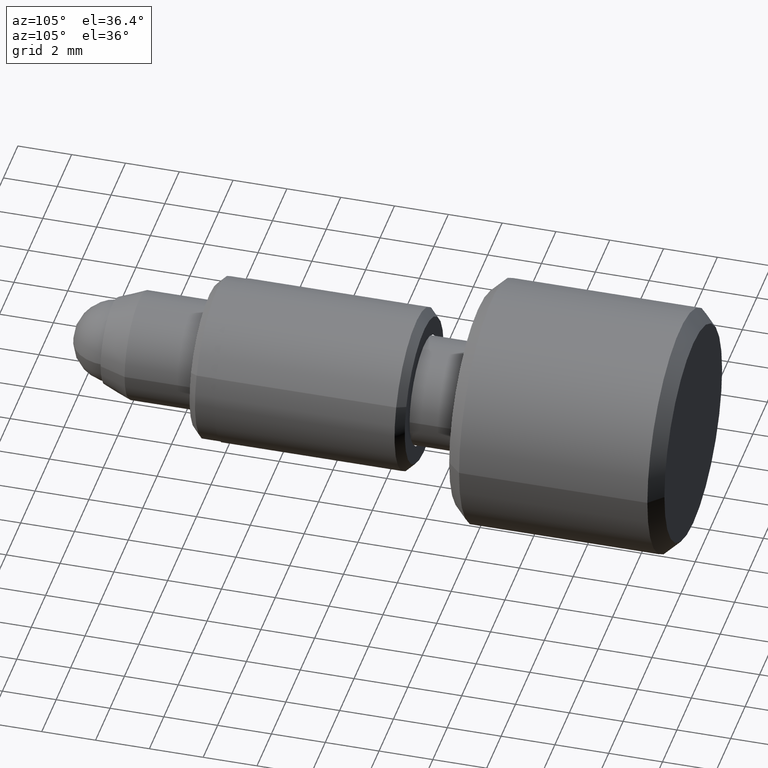
[diagram: clean part render]
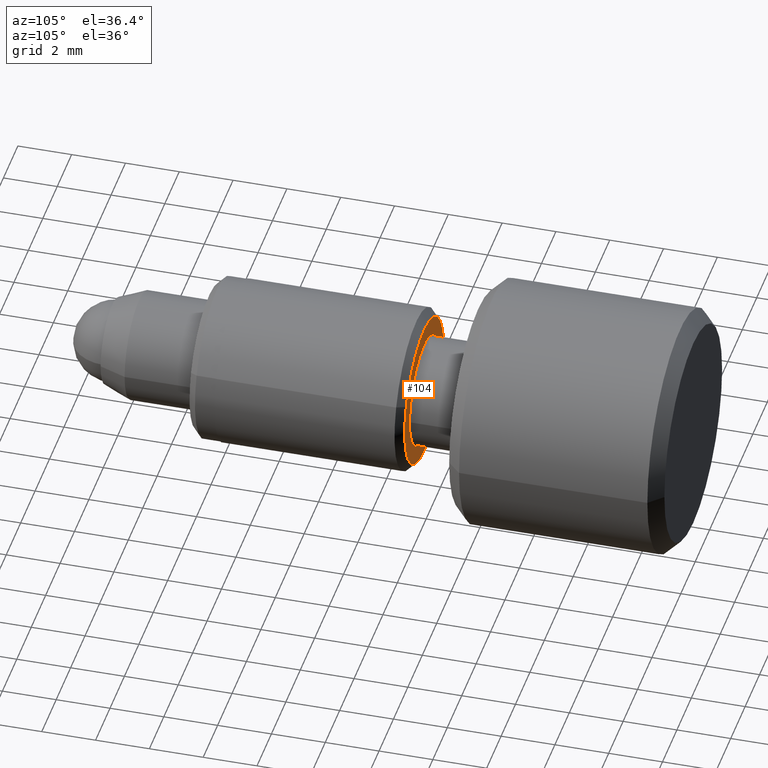
[diagram: same view with one face highlighted and labeled with its STEP entity id]
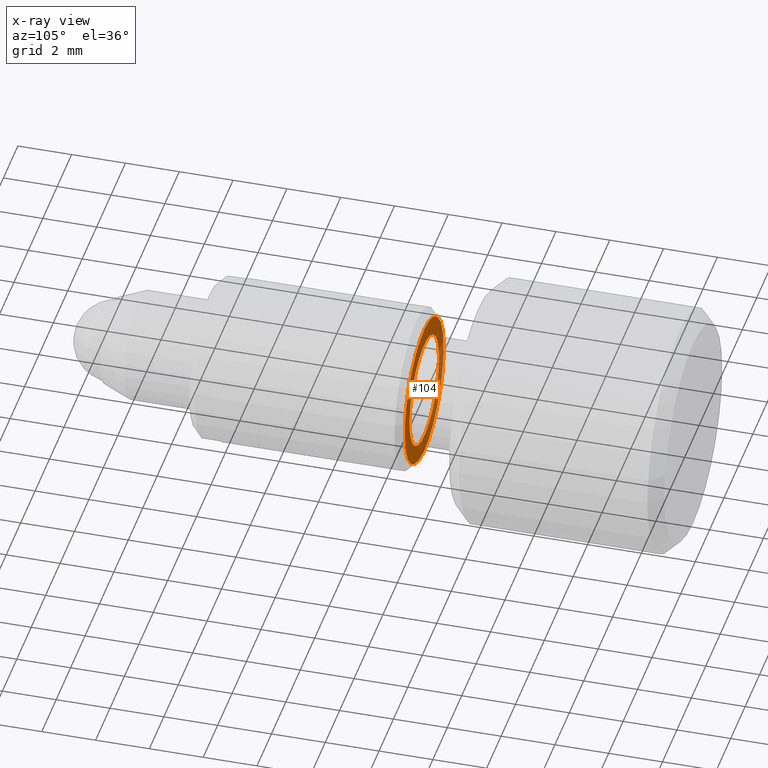
[diagram: x-ray of the same camera — body ghosted, the highlighted face saturated]
A machine part, auxiliary view. The second image highlights one B-rep face of the part: STEP entity #104.
The next image is the same camera in x-ray: the body ghosted, the highlighted face saturated — about 25% of this face is hidden behind the body in this view.
In plain terms, the highlighted planar face has unit normal (0, 1, 0).
Its self-contained STEP definition (entity closure, byte-faithful):
#6 = CIRCLE ( 'NONE', #913, 2.699999999999999700 ) ;
#8 = EDGE_CURVE ( 'NONE', #827, #783, #6, .T. ) ;
#61 = CIRCLE ( 'NONE', #355, 2.699999999999999700 ) ;
#63 = ORIENTED_EDGE ( 'NONE', *, *, #8, .T. ) ;
#68 = VERTEX_POINT ( 'NONE', #601 ) ;
#104 = ADVANCED_FACE ( 'NONE', ( #1000, #117 ), #825, .T. ) ;
#117 = FACE_BOUND ( 'NONE', #349, .T. ) ;
#150 = DIRECTION ( 'NONE',  ( 9.496758840798626900E-017, 1.000000000000000000, 3.947342750354810800E-017 ) ) ;
#219 = DIRECTION ( 'NONE',  ( 9.496758840798626900E-017, 1.000000000000000000, 3.947342750354810800E-017 ) ) ;
#231 = EDGE_CURVE ( 'NONE', #421, #68, #553, .T. ) ;
#242 = DIRECTION ( 'NONE',  ( 9.496758840798626900E-017, 1.000000000000000000, 3.947342750354811400E-017 ) ) ;
#314 = CARTESIAN_POINT ( 'NONE',  ( 8.886313430823040700, 17.63143070247039600, 17.11623035873973800 ) ) ;
#349 = EDGE_LOOP ( 'NONE', ( #1105, #821 ) ) ;
#355 = AXIS2_PLACEMENT_3D ( 'NONE', #574, #219, #651 ) ;
#375 = DIRECTION ( 'NONE',  ( -0.3838165544280340300, 0.0000000000000000000, 0.9234093634715818700 ) ) ;
#379 = DIRECTION ( 'NONE',  ( -1.186707531280934900E-048, -1.000000000000000000, 5.657816661802917300E-033 ) ) ;
#394 = CIRCLE ( 'NONE', #937, 2.033750059999996900 ) ;
#412 = DIRECTION ( 'NONE',  ( -0.3838165544280340300, 0.0000000000000000000, 0.9234093634715818700 ) ) ;
#421 = VERTEX_POINT ( 'NONE', #1047 ) ;
#553 = CIRCLE ( 'NONE', #739, 2.033750059999996900 ) ;
#563 = CARTESIAN_POINT ( 'NONE',  ( 8.886313430823046000, 17.63143070247039600, 17.11623035873974200 ) ) ;
#574 = CARTESIAN_POINT ( 'NONE',  ( 8.886313430823040700, 17.63143070247039600, 17.11623035873973800 ) ) ;
#601 = CARTESIAN_POINT ( 'NONE',  ( 8.105726490226040000, 17.63143070247039600, 18.99421420710463000 ) ) ;
#620 = EDGE_CURVE ( 'NONE', #783, #827, #61, .T. ) ;
#627 = ORIENTED_EDGE ( 'NONE', *, *, #620, .T. ) ;
#651 = DIRECTION ( 'NONE',  ( -0.9234093634715816500, 0.0000000000000000000, -0.3838165544280344200 ) ) ;
#661 = EDGE_LOOP ( 'NONE', ( #63, #627 ) ) ;
#665 = EDGE_CURVE ( 'NONE', #68, #421, #394, .T. ) ;
#679 = DIRECTION ( 'NONE',  ( -1.186707531280934900E-048, -1.000000000000000000, 5.657816661802917300E-033 ) ) ;
#739 = AXIS2_PLACEMENT_3D ( 'NONE', #1106, #679, #412 ) ;
#747 = DIRECTION ( 'NONE',  ( -0.9234093634715816500, 0.0000000000000000000, -0.3838165544280344200 ) ) ;
#783 = VERTEX_POINT ( 'NONE', #880 ) ;
#821 = ORIENTED_EDGE ( 'NONE', *, *, #231, .T. ) ;
#825 = PLANE ( 'NONE',  #1098 ) ;
#827 = VERTEX_POINT ( 'NONE', #871 ) ;
#851 = DIRECTION ( 'NONE',  ( -0.9234093634715818700, 1.028445152981264100E-016, -0.3838165544280340300 ) ) ;
#871 = CARTESIAN_POINT ( 'NONE',  ( 11.37951871219630800, 17.63143070247039600, 18.15253505569542700 ) ) ;
#880 = CARTESIAN_POINT ( 'NONE',  ( 6.393108149449773200, 17.63143070247039600, 16.07992566178404900 ) ) ;
#913 = AXIS2_PLACEMENT_3D ( 'NONE', #314, #150, #747 ) ;
#937 = AXIS2_PLACEMENT_3D ( 'NONE', #563, #379, #375 ) ;
#939 = CARTESIAN_POINT ( 'NONE',  ( 11.65654152123778300, 17.63143070247039600, 18.26768002202384300 ) ) ;
#1000 = FACE_OUTER_BOUND ( 'NONE', #661, .T. ) ;
#1047 = CARTESIAN_POINT ( 'NONE',  ( 9.666900371420052100, 17.63143070247039600, 15.23824651037485200 ) ) ;
#1098 = AXIS2_PLACEMENT_3D ( 'NONE', #939, #242, #851 ) ;
#1105 = ORIENTED_EDGE ( 'NONE', *, *, #665, .T. ) ;
#1106 = CARTESIAN_POINT ( 'NONE',  ( 8.886313430823046000, 17.63143070247039600, 17.11623035873974200 ) ) ;